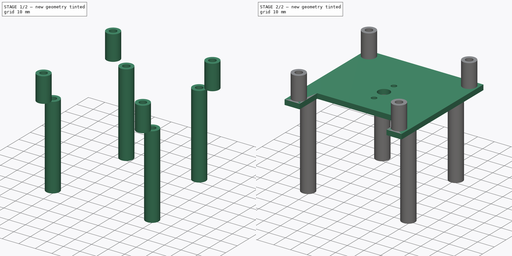
[diagram: build sequence overview — one tinted view per stage of 2, left to right]
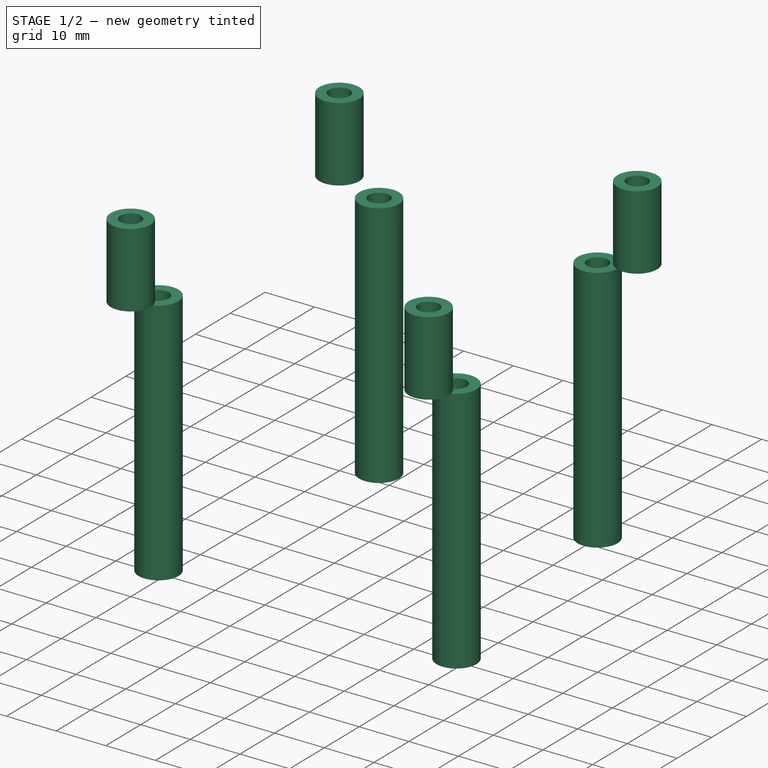
[diagram: stage 1 of 2 — iso view after this stage's code; geometry added in this stage tinted green]
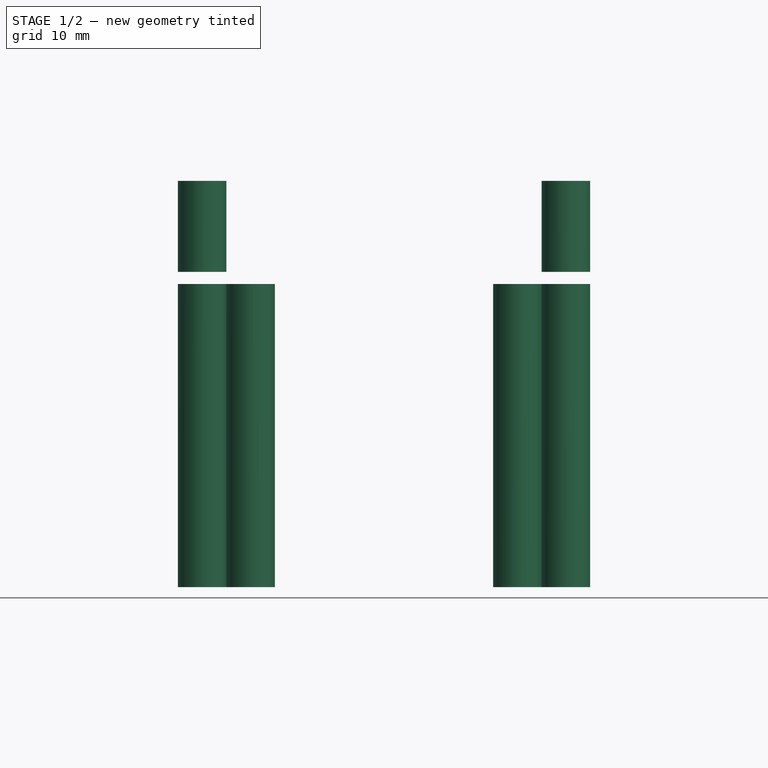
[diagram: stage 1 of 2 — front view after this stage's code; geometry added in this stage tinted green]
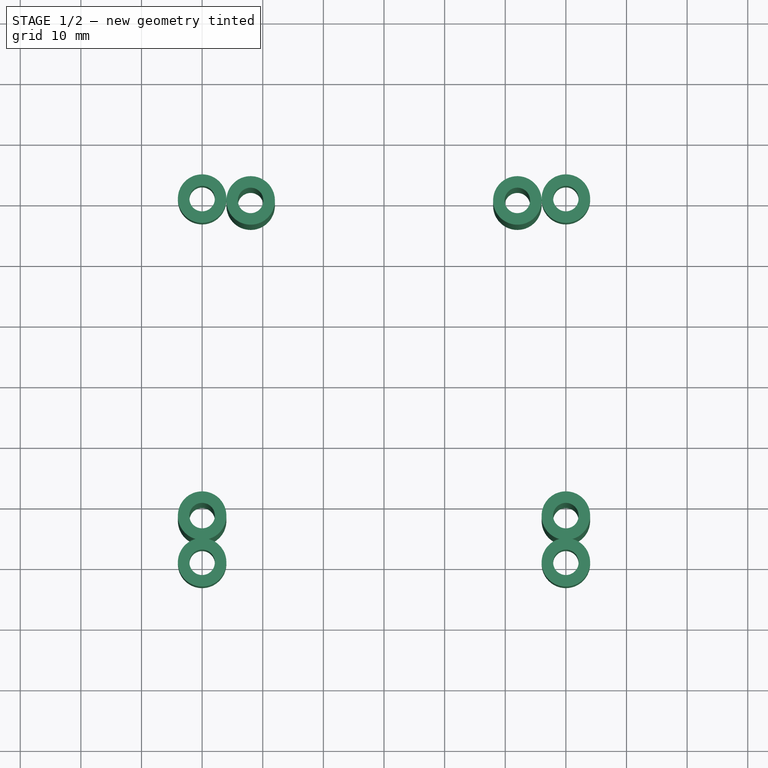
[diagram: stage 1 of 2 — top view after this stage's code; geometry added in this stage tinted green]
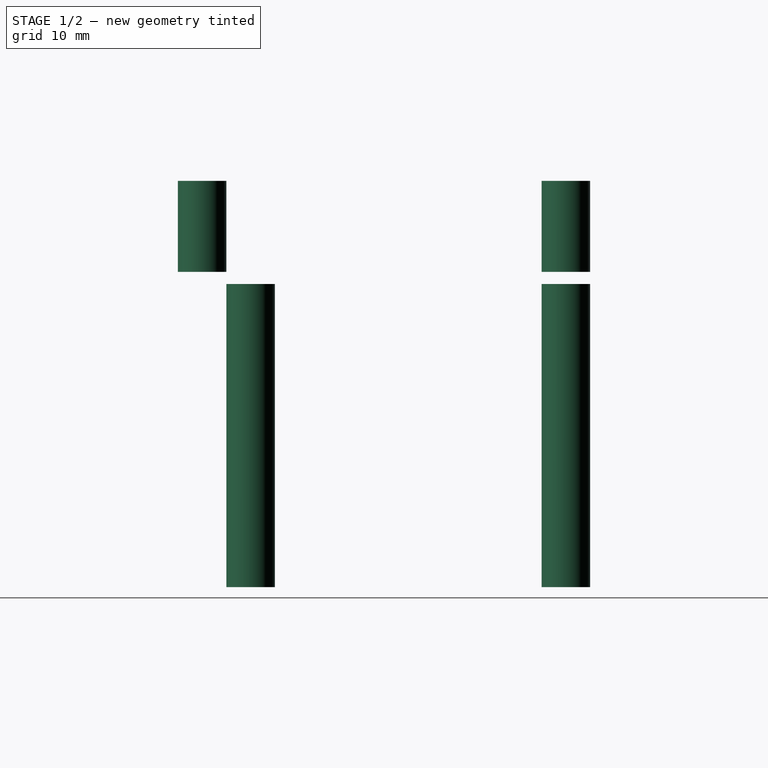
[diagram: stage 1 of 2 — right view after this stage's code; geometry added in this stage tinted green]
FCSTD DOCUMENT  (FreeCAD 0.16R6706 (Git))
Label: POVDisplay
License: All rights reserved
LicenseURL: http://en.wikipedia.org/wiki/All_rights_reserved
objects: Sketcher::SketchObject×3, PartDesign::Pad×3, App::VRMLObject×2
note: 9 computed .brp shape members not serialized (recipe doc carries the construction recipe); baked Part::Feature solids carry a one-line shape summary decoded from their .brp

FEATURE [App::VRMLObject] POVBaseCoil001  label="POVBaseCoil"
  Placement = pos=(0,0,18) rot=(0,0,1;0rad)
  Resources = POVBaseCoil001/shapes3D/C_1210.wrl | POVBaseCoil001/shapes3D/LED_1206.wrl | POVBaseCoil001/shapes3D/Socket_Strip_Straight_1x05.wrl | POVBaseCoil001/shapes3D/Socket_Strip_Straight_1x01.wrl
FEATURE [App::VRMLObject] POVBaseController
  Placement = pos=(0,-36,5) rot=(0,0,1;0rad)
  Resources = POVBaseController/shapes3D/C_0805.wrl | POVBaseController/shapes3D/SMD-1210_Pol.wrl | POVBaseController/shapes3D/JACK_ALIM.wrl | POVBaseController/shapes3D/LED_0603.wrl | POVBaseController/shapes3D/Pin_Header_Straight_1x05.wrl | POVBaseController/shapes3D/R_0805.wrl | POVBaseController/shapes3D/R_0603_HandSoldering.wrl | POVBaseController/shapes3D/SSOP-16_5.3x6.2mm_Pitch0.65mm.wrl | POVBaseController/shapes3D/SOT-223.wrl | POVBaseController/shapes3D/QFN-24-1EP_4x4mm_Pitch0.5mm.wrl | POVBaseController/shapes3D/Pin_Header_Straight_1x01.wrl
FEATURE [Sketcher::SketchObject] Sketch003  label="Standoffs"
  Placement = pos=(0,0,2) rot=(0,0,1;0rad)
  sketch-geometry (8):
    g0: Circle CenterX=30 CenterY=30 CenterZ=0 NormalX=0 NormalY=0 NormalZ=1 Radius=2.1
    g1: Circle CenterX=-30 CenterY=30 CenterZ=0 NormalX=0 NormalY=0 NormalZ=1 Radius=2.1
    g2: Circle CenterX=-30 CenterY=-30 CenterZ=0 NormalX=0 NormalY=0 NormalZ=1 Radius=2.1
    g3: Circle CenterX=30 CenterY=-30 CenterZ=0 NormalX=0 NormalY=0 NormalZ=1 Radius=2.1
    g4: Circle CenterX=-30 CenterY=30 CenterZ=0 NormalX=0 NormalY=0 NormalZ=1 Radius=4
    g5: Circle CenterX=30 CenterY=30 CenterZ=0 NormalX=0 NormalY=0 NormalZ=1 Radius=4
    g6: Circle CenterX=30 CenterY=-30 CenterZ=0 NormalX=0 NormalY=0 NormalZ=1 Radius=4
    g7: Circle CenterX=-30 CenterY=-30 CenterZ=0 NormalX=0 NormalY=0 NormalZ=1 Radius=4
  constraints (20):
    c: DistanceX(g-2,g0) = 30
    c: DistanceY(g-1,g0) = 30
    c: Radius(g0) = 2.1
    c: Radius(g1) = 2.1
    c: DistanceX(g-2,g1) = -30
    c: DistanceY(g-1,g1) = 30
    c: Radius(g2) = 2.1
    c: DistanceX(g-2,g2) = -30
    c: DistanceY(g-1,g2) = -30
    c: Radius(g3) = 2.1
    c: DistanceX(g-2,g3) = 30
    c: DistanceY(g-1,g3) = -30
    c: Coincident(g4,g1)
    c: Coincident(g5,g0)
    c: Coincident(g6,g3)
    c: Coincident(g7,g2)
    c: Radius(g4) = 4
    c: Radius(g7) = 4
    c: Radius(g6) = 4
    c: Radius(g5) = 4
FEATURE [PartDesign::Pad] Pad001
  Length = 15
  Length2 = 100
  Placement = pos=(0,0,2) rot=(0,0,1;0rad)
  Sketch = -> Sketch003
  Type = 0
FEATURE [Sketcher::SketchObject] Sketch004  label="Legs"
  Placement = pos=(0,0,-50) rot=(0,0,1;0rad)
  sketch-geometry (8):
    g0: Circle CenterX=22 CenterY=30 CenterZ=0 NormalX=0 NormalY=0 NormalZ=1 Radius=2.1
    g1: Circle CenterX=-22 CenterY=30 CenterZ=0 NormalX=0 NormalY=0 NormalZ=1 Radius=2.1
    g2: Circle CenterX=-30 CenterY=-22 CenterZ=0 NormalX=0 NormalY=0 NormalZ=1 Radius=2.1
    g3: Circle CenterX=30 CenterY=-22 CenterZ=0 NormalX=0 NormalY=0 NormalZ=1 Radius=2.1
    g4: Circle CenterX=-22 CenterY=30 CenterZ=0 NormalX=0 NormalY=0 NormalZ=1 Radius=4
    g5: Circle CenterX=22 CenterY=30 CenterZ=0 NormalX=0 NormalY=0 NormalZ=1 Radius=4
    g6: Circle CenterX=30 CenterY=-22 CenterZ=0 NormalX=0 NormalY=0 NormalZ=1 Radius=4
    g7: Circle CenterX=-30 CenterY=-22 CenterZ=0 NormalX=0 NormalY=0 NormalZ=1 Radius=4
  constraints (20):
    c: DistanceX(g-2,g0) = 22
    c: DistanceY(g-1,g0) = 30
    c: Radius(g0) = 2.1
    c: Radius(g1) = 2.1
    c: DistanceX(g-2,g1) = -22
    c: DistanceY(g-1,g1) = 30
    c: Radius(g2) = 2.1
    c: DistanceX(g-2,g2) = -30
    c: DistanceY(g-1,g2) = -22
    c: Radius(g3) = 2.1
    c: DistanceX(g-2,g3) = 30
    c: DistanceY(g-1,g3) = -22
    c: Coincident(g4,g1)
    c: Coincident(g5,g0)
    c: Coincident(g6,g3)
    c: Coincident(g7,g2)
    c: Radius(g4) = 4
    c: Radius(g7) = 4
    c: Radius(g6) = 4
    c: Radius(g5) = 4
FEATURE [PartDesign::Pad] Pad002
  Length = 50
  Length2 = 100
  Placement = pos=(0,0,-50) rot=(0,0,1;0rad)
  Sketch = -> Sketch004
  Type = 0
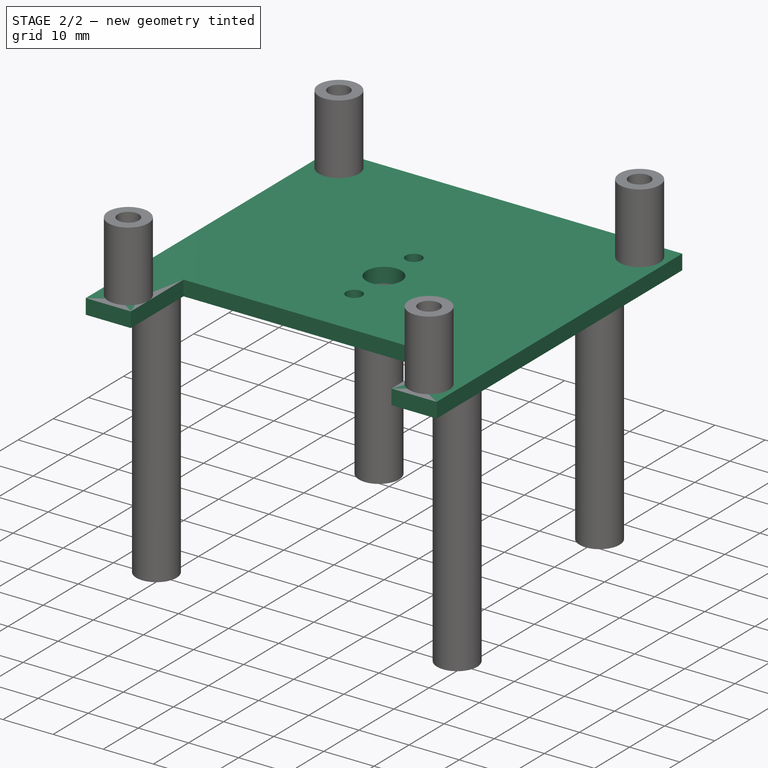
[diagram: stage 2 of 2 — iso view after this stage's code; geometry added in this stage tinted green]
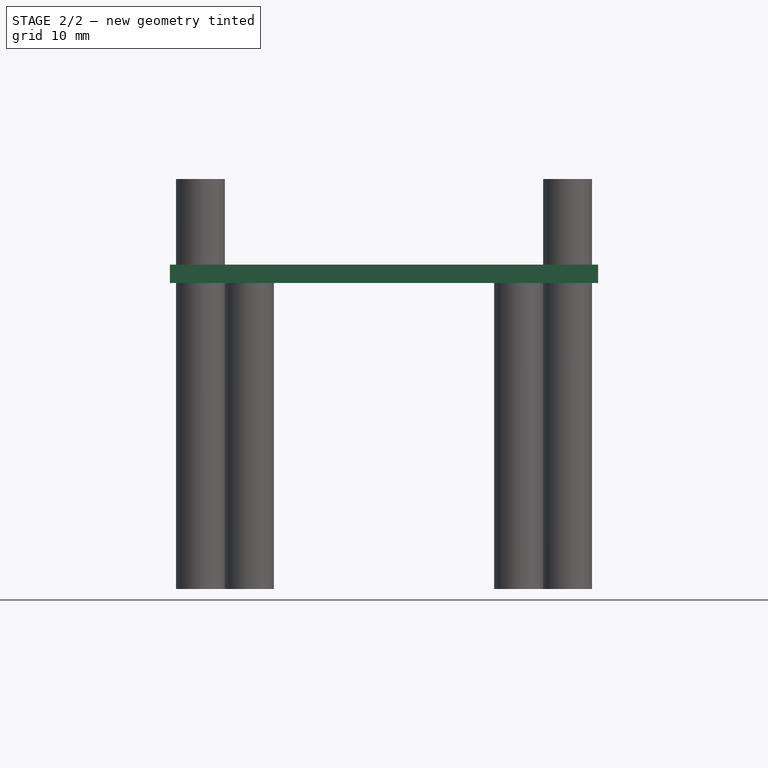
[diagram: stage 2 of 2 — front view after this stage's code; geometry added in this stage tinted green]
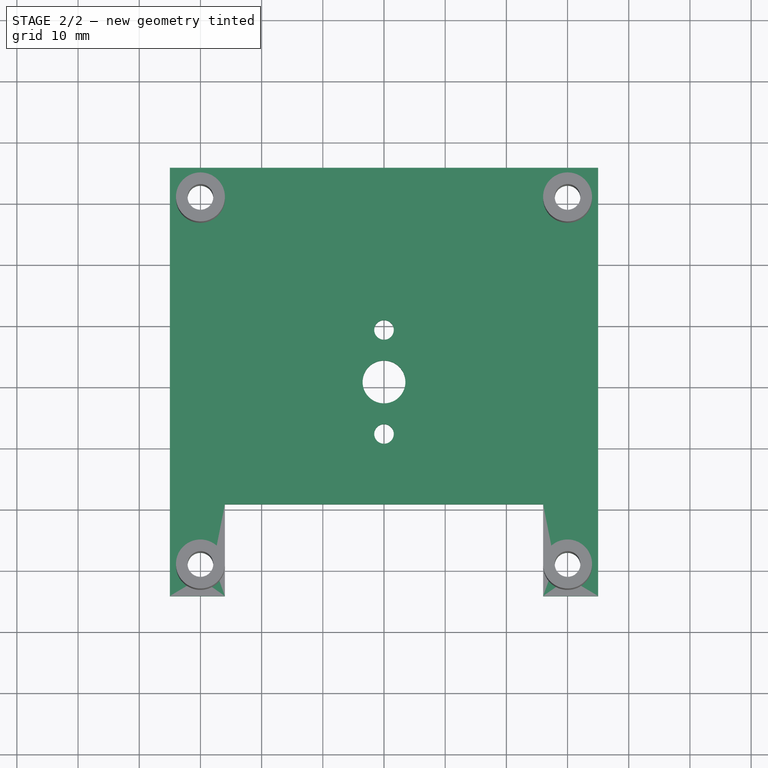
[diagram: stage 2 of 2 — top view after this stage's code; geometry added in this stage tinted green]
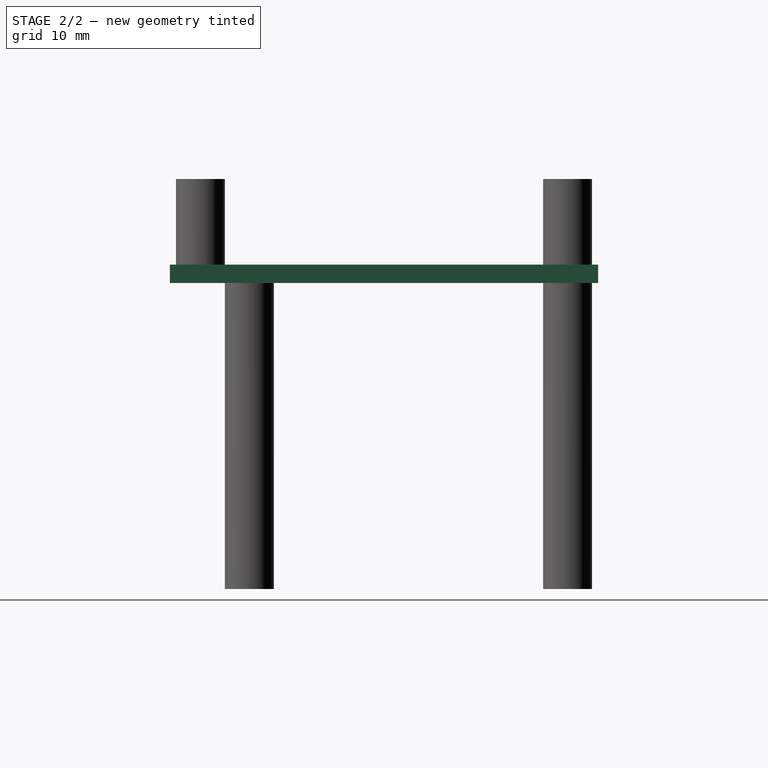
[diagram: stage 2 of 2 — right view after this stage's code; geometry added in this stage tinted green]
FEATURE [Sketcher::SketchObject] Sketch002  label="MotorPcbMount"
  sketch-geometry (17):
    g0: Circle CenterX=0 CenterY=0 CenterZ=0 NormalX=0 NormalY=0 NormalZ=1 Radius=3.5
    g1: Circle [constr] CenterX=0 CenterY=0 CenterZ=0 NormalX=0 NormalY=0 NormalZ=1 Radius=8.5
    g2: Circle CenterX=0 CenterY=8.5 CenterZ=0 NormalX=0 NormalY=0 NormalZ=1 Radius=1.6
    g3: Circle CenterX=0 CenterY=-8.5 CenterZ=0 NormalX=0 NormalY=0 NormalZ=1 Radius=1.6
    g4: LineSegment StartX=-35 StartY=35 StartZ=0 EndX=35 EndY=35 EndZ=0
    g5: LineSegment StartX=35 StartY=35 StartZ=0 EndX=35 EndY=-35 EndZ=0
    g6: Circle CenterX=30 CenterY=30 CenterZ=0 NormalX=0 NormalY=0 NormalZ=1 Radius=2.1
    g7: Circle CenterX=-30 CenterY=30 CenterZ=0 NormalX=0 NormalY=0 NormalZ=1 Radius=2.1
    g8: Circle CenterX=-30 CenterY=-30 CenterZ=0 NormalX=0 NormalY=0 NormalZ=1 Radius=2.1
    g9: Circle CenterX=30 CenterY=-30 CenterZ=0 NormalX=0 NormalY=0 NormalZ=1 Radius=2.1
    g10: LineSegment StartX=-26 StartY=-35 StartZ=0 EndX=-26 EndY=-20 EndZ=0
    g11: LineSegment StartX=26 StartY=-20 StartZ=0 EndX=26 EndY=-35 EndZ=0
    g12: LineSegment StartX=-35 StartY=-35 StartZ=0 EndX=-26 EndY=-35 EndZ=0
    g13: GeomPoint [constr] X=35 Y=-35 Z=0
    g14: LineSegment StartX=35 StartY=-35 StartZ=0 EndX=26 EndY=-35 EndZ=0
    g15: LineSegment StartX=-35 StartY=35 StartZ=0 EndX=-35 EndY=-35 EndZ=0
    g16: LineSegment StartX=-26 StartY=-20 StartZ=0 EndX=26 EndY=-20 EndZ=0
  constraints (47):
    c: Coincident(g0,g-1)
    c: Radius(g0) = 3.5
    c: Coincident(g1,g-1)
    c: Radius(g1) = 8.5
    c: PointOnObject(g2,g1)
    c: Radius(g2) = 1.6
    c: PointOnObject(g2,g-2)
    c: PointOnObject(g3,g1)
    c: Radius(g3) = 1.6
    c: PointOnObject(g3,g-2)
    c: Coincident(g4,g5)
    c: Horizontal(g4)
    c: Vertical(g5)
    c: DistanceX(g-2,g6) = 30
    c: DistanceY(g-1,g6) = 30
    c: Radius(g6) = 2.1
    c: Radius(g7) = 2.1
    c: DistanceX(g-2,g7) = -30
    c: DistanceY(g-1,g7) = 30
    c: Radius(g8) = 2.1
    c: DistanceX(g-2,g8) = -30
    c: DistanceY(g-1,g8) = -30
    c: Radius(g9) = 2.1
    c: DistanceX(g-2,g9) = 30
    c: Distance(g12,g10) = 9
    c: Distance(g11,g5) = 9
    c: DistanceY(g-1,g9) = -30
    c: Coincident(g12,g10)
    c: Distance(g-1,g4) = 35
    c: Distance(g-1,g5) = 35
    c: Distance(g-1,g12) = 35
    c: Coincident(g13,g5)
    c: Coincident(g14,g5)
    c: Coincident(g14,g11)
    c: Distance(g-1,g14) = 35
    c: Coincident(g15,g4)
    c: Coincident(g15,g12)
    c: Vertical(g15)
    c: Coincident(g16,g10)
    c: Coincident(g16,g11)
    c: Horizontal(g16)
    c: Horizontal(g12)
    c: Horizontal(g14)
    c: Distance(g-1,g15) = 35
    c: Perpendicular(g10,g12)
    c: Perpendicular(g11,g14)
    c: Distance(g11,g11) = 15
FEATURE [PartDesign::Pad] Pad
  Length = 3
  Length2 = 100
  Sketch = -> Sketch002
  Type = 0
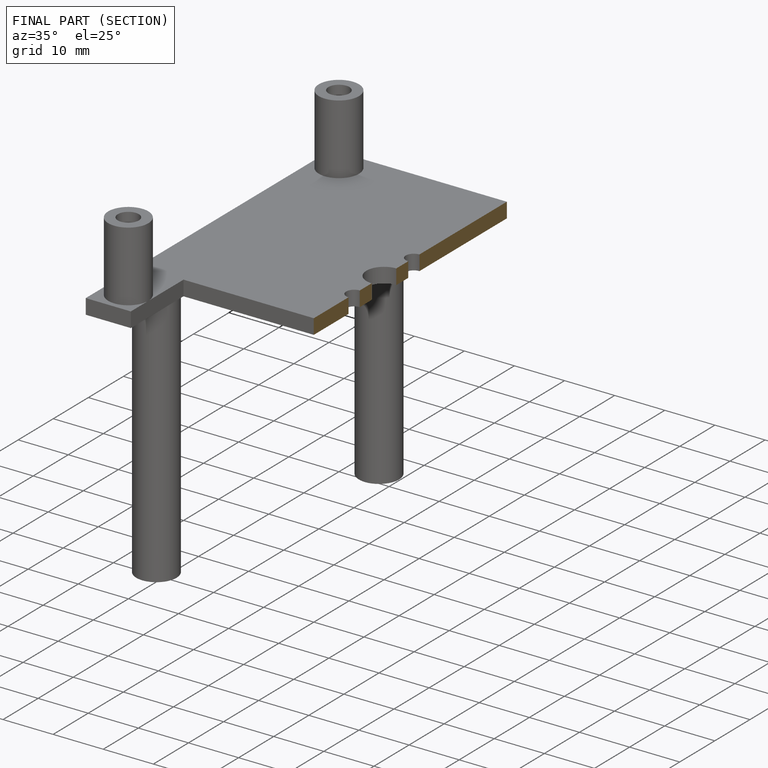
[diagram: finished part — half-section view (interior)]
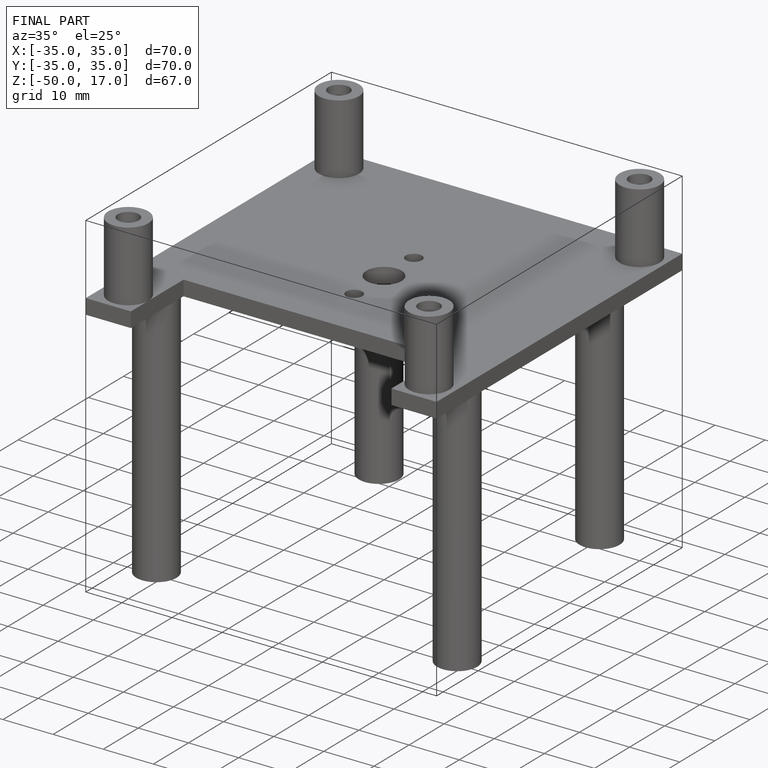
[diagram: finished part — iso view with bounding-box wireframe]
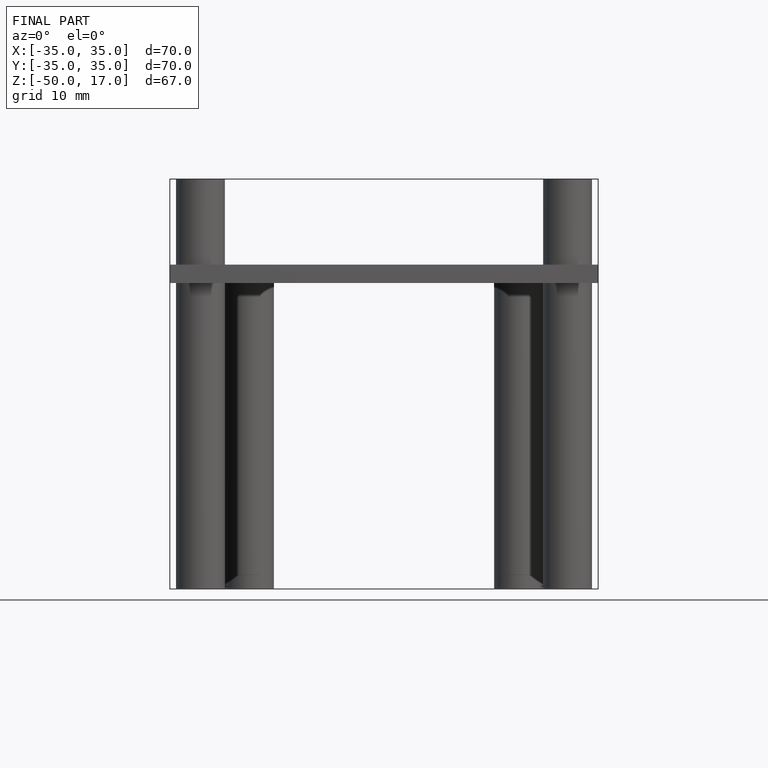
[diagram: finished part — front view with bounding-box wireframe]
